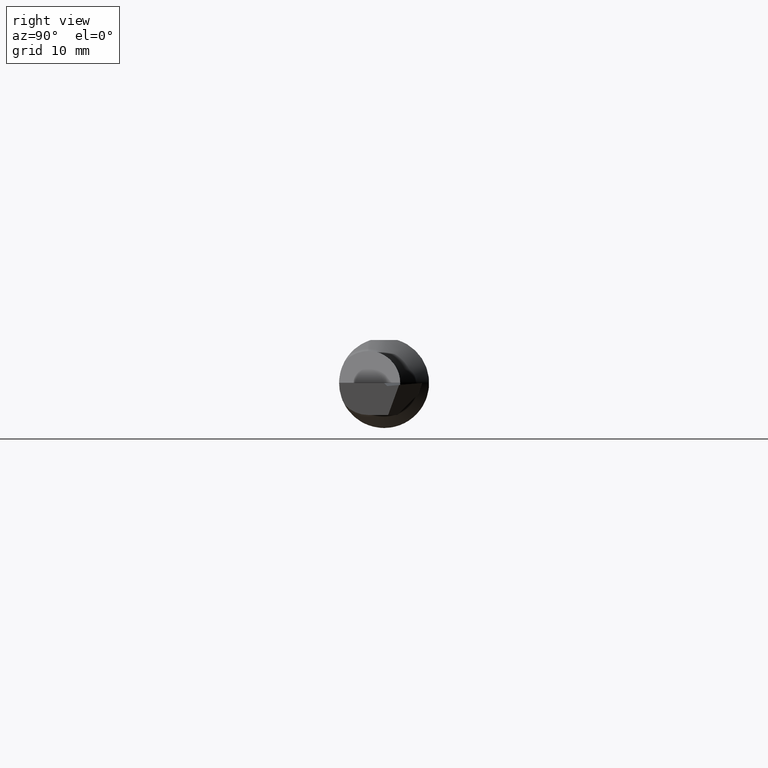
[diagram: clean part render]
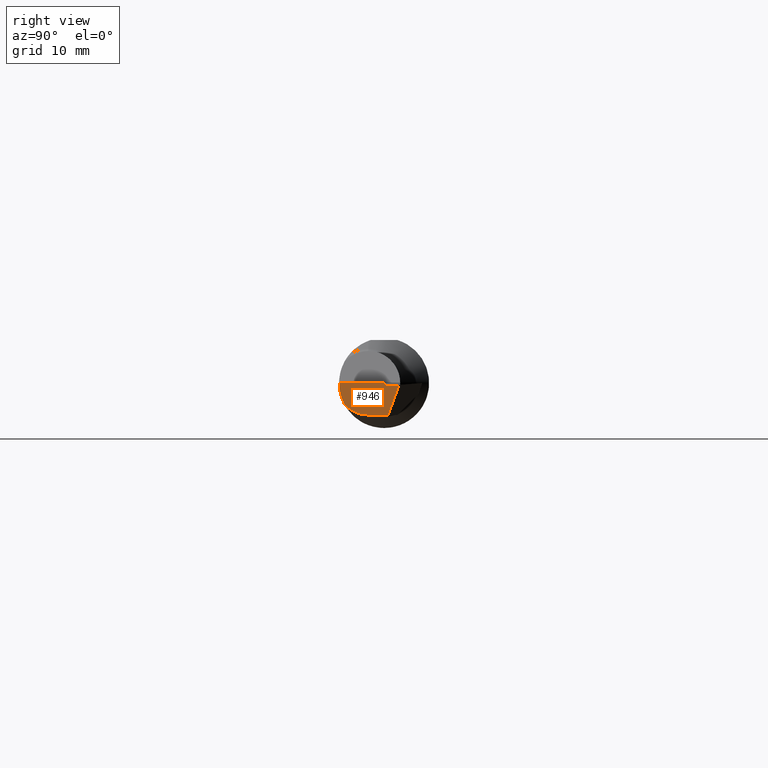
[diagram: same view with one face highlighted and labeled with its STEP entity id]
A machine part, right view. The second image highlights one B-rep face of the part: STEP entity #946.
In plain terms, the highlighted planar face has unit normal (1, 0, 0).
Its self-contained STEP definition (entity closure, byte-faithful):
#24 = DIRECTION ( 'NONE',  ( 0.000000000000000000, 0.000000000000000000, -1.000000000000000000 ) ) ;
#32 = CARTESIAN_POINT ( 'NONE',  ( 2.500000000000000000, 0.000000000000000000, 0.000000000000000000 ) ) ;
#38 = DIRECTION ( 'NONE',  ( -0.000000000000000000, 1.000000000000000000, -1.035699637927244910E-16 ) ) ;
#47 = EDGE_LOOP ( 'NONE', ( #214, #147, #727, #328, #525, #545, #951 ) ) ;
#91 = VERTEX_POINT ( 'NONE', #215 ) ;
#103 = VECTOR ( 'NONE', #412, 39.37007874015748143 ) ;
#113 = CARTESIAN_POINT ( 'NONE',  ( 2.500000000000000000, 0.05199573487638509128, -0.006990607446293283823 ) ) ;
#146 = CARTESIAN_POINT ( 'NONE',  ( 2.500000000000000000, 0.0003894951217566267640, -6.429183357567480113E-17 ) ) ;
#147 = ORIENTED_EDGE ( 'NONE', *, *, #522, .T. ) ;
#189 = VECTOR ( 'NONE', #1008, 39.37007874015748143 ) ;
#208 = AXIS2_PLACEMENT_3D ( 'NONE', #32, #352, #24 ) ;
#214 = ORIENTED_EDGE ( 'NONE', *, *, #780, .F. ) ;
#215 = CARTESIAN_POINT ( 'NONE',  ( 2.500000000000000000, 0.01412651464526253585, -0.1109999999999999876 ) ) ;
#280 = DIRECTION ( 'NONE',  ( 0.000000000000000000, 0.000000000000000000, -1.000000000000000000 ) ) ;
#308 = AXIS2_PLACEMENT_3D ( 'NONE', #845, #762, #280 ) ;
#325 = CIRCLE ( 'NONE', #489, 0.1109999999999999876 ) ;
#328 = ORIENTED_EDGE ( 'NONE', *, *, #918, .F. ) ;
#349 = CARTESIAN_POINT ( 'NONE',  ( 2.500000000000000000, 0.04815705361646836768, -0.01753370560396582192 ) ) ;
#352 = DIRECTION ( 'NONE',  ( 1.000000000000000000, 0.000000000000000000, 0.000000000000000000 ) ) ;
#360 = CARTESIAN_POINT ( 'NONE',  ( 2.500000000000000000, 0.007431566834230300851, -0.007054720336019226767 ) ) ;
#383 = EDGE_CURVE ( 'NONE', #708, #91, #582, .T. ) ;
#412 = DIRECTION ( 'NONE',  ( 0.000000000000000000, -0.3421230293284966417, -0.9396551669645054616 ) ) ;
#444 = CARTESIAN_POINT ( 'NONE',  ( 2.500000000000000000, 0.01095332577398697160, -0.01058135296654651343 ) ) ;
#471 = VERTEX_POINT ( 'NONE', #1020 ) ;
#489 = AXIS2_PLACEMENT_3D ( 'NONE', #580, #979, #985 ) ;
#511 = PLANE ( 'NONE',  #308 ) ;
#522 = EDGE_CURVE ( 'NONE', #879, #564, #685, .T. ) ;
#525 = ORIENTED_EDGE ( 'NONE', *, *, #811, .T. ) ;
#526 = FACE_OUTER_BOUND ( 'NONE', #47, .T. ) ;
#540 = CIRCLE ( 'NONE', #208, 0.1560999999999999888 ) ;
#545 = ORIENTED_EDGE ( 'NONE', *, *, #824, .T. ) ;
#564 = VERTEX_POINT ( 'NONE', #444 ) ;
#580 = CARTESIAN_POINT ( 'NONE',  ( 2.500000000000000000, -0.05509999999999982967, 0.000000000000000000 ) ) ;
#582 = LINE ( 'NONE', #747, #590 ) ;
#590 = VECTOR ( 'NONE', #38, 39.37007874015748143 ) ;
#596 = CARTESIAN_POINT ( 'NONE',  ( 2.500000000000000000, 0.003910293907895272432, -0.003527598698383563498 ) ) ;
#598 = CARTESIAN_POINT ( 'NONE',  ( 2.500000000000000000, 0.2999999999999999889, -6.429183357567480113E-17 ) ) ;
#604 = EDGE_CURVE ( 'NONE', #564, #705, #628, .T. ) ;
#628 = B_SPLINE_CURVE_WITH_KNOTS ( 'NONE', 3,
 ( #924, #360, #596, #840 ),
 .UNSPECIFIED., .F., .F.,
 ( 4, 4 ),
 ( 0.008990267065048357029, 0.009370042637900047322 ),
 .UNSPECIFIED. ) ;
#681 = LINE ( 'NONE', #598, #795 ) ;
#685 = LINE ( 'NONE', #928, #189 ) ;
#705 = VERTEX_POINT ( 'NONE', #146 ) ;
#708 = VERTEX_POINT ( 'NONE', #888 ) ;
#727 = ORIENTED_EDGE ( 'NONE', *, *, #604, .T. ) ;
#747 = CARTESIAN_POINT ( 'NONE',  ( 2.500000000000000000, 0.1097552276659293918, -0.1109999999999999876 ) ) ;
#762 = DIRECTION ( 'NONE',  ( 1.000000000000000000, 0.000000000000000000, 0.000000000000000000 ) ) ;
#780 = EDGE_CURVE ( 'NONE', #879, #91, #822, .T. ) ;
#795 = VECTOR ( 'NONE', #942, 39.37007874015748143 ) ;
#811 = EDGE_CURVE ( 'NONE', #471, #1024, #540, .T. ) ;
#822 = LINE ( 'NONE', #349, #103 ) ;
#824 = EDGE_CURVE ( 'NONE', #1024, #708, #325, .T. ) ;
#840 = CARTESIAN_POINT ( 'NONE',  ( 2.500000000000000000, 0.0003894951217566267640, -6.429183357567480113E-17 ) ) ;
#845 = CARTESIAN_POINT ( 'NONE',  ( 2.500000000000000000, 0.000000000000000000, 0.000000000000000000 ) ) ;
#879 = VERTEX_POINT ( 'NONE', #113 ) ;
#887 = CARTESIAN_POINT ( 'NONE',  ( 2.500000000000000000, -0.1368622504537206075, -0.07507286061382667519 ) ) ;
#888 = CARTESIAN_POINT ( 'NONE',  ( 2.500000000000000000, -0.05509999999999984355, -0.1109999999999999737 ) ) ;
#918 = EDGE_CURVE ( 'NONE', #471, #705, #681, .T. ) ;
#924 = CARTESIAN_POINT ( 'NONE',  ( 2.500000000000000000, 0.01095332577398697160, -0.01058135296654651343 ) ) ;
#928 = CARTESIAN_POINT ( 'NONE',  ( 2.500000000000000000, 0.001001919145193789920, -0.01145198823270259132 ) ) ;
#942 = DIRECTION ( 'NONE',  ( -0.000000000000000000, 1.000000000000000000, -0.000000000000000000 ) ) ;
#946 = ADVANCED_FACE ( 'NONE', ( #526 ), #511, .T. ) ;
#951 = ORIENTED_EDGE ( 'NONE', *, *, #383, .T. ) ;
#979 = DIRECTION ( 'NONE',  ( 1.000000000000000000, -0.000000000000000000, -0.000000000000000000 ) ) ;
#985 = DIRECTION ( 'NONE',  ( 0.000000000000000000, 0.000000000000000000, 1.000000000000000000 ) ) ;
#1008 = DIRECTION ( 'NONE',  ( 0.000000000000000000, -0.9961946980917453232, -0.08715574274766091367 ) ) ;
#1020 = CARTESIAN_POINT ( 'NONE',  ( 2.500000000000000000, -0.1560999999999998500, -6.429183357567480113E-17 ) ) ;
#1024 = VERTEX_POINT ( 'NONE', #887 ) ;